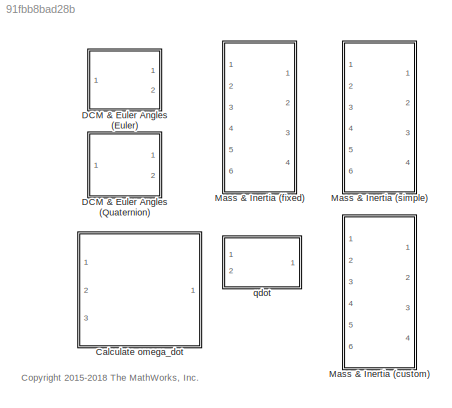
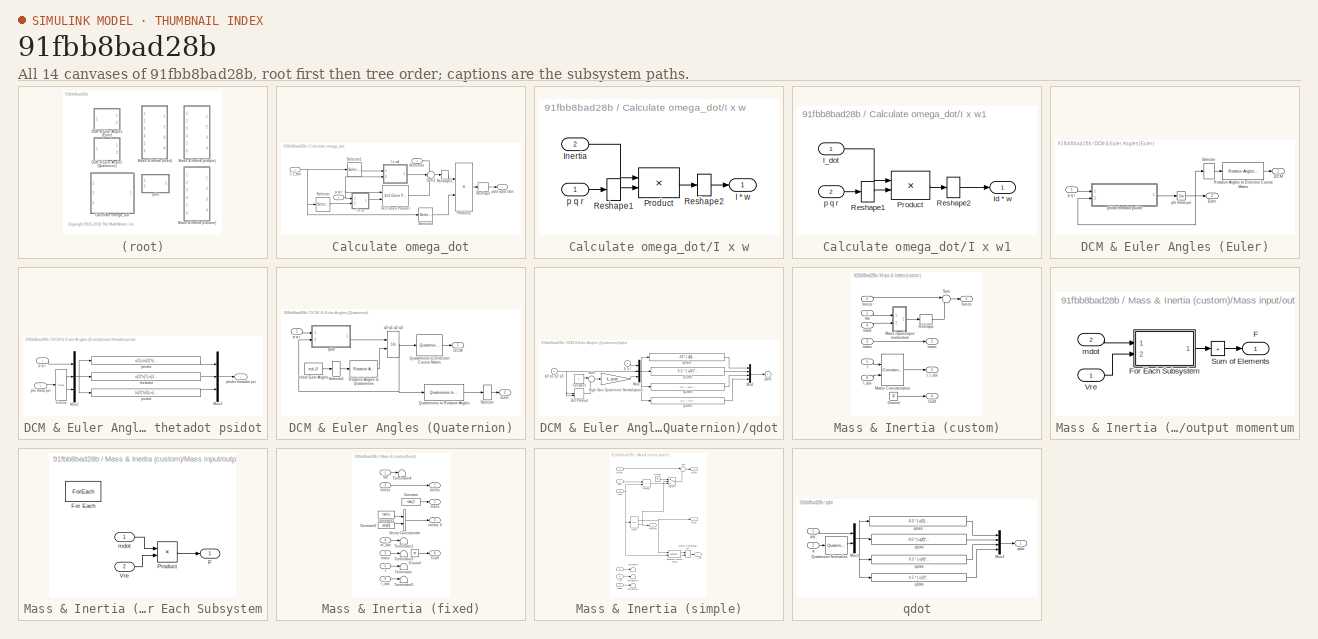
[diagram: thumbnail index - all 14 canvases of the model, root first then tree order]
MODEL slx_91fbb8bad28b
KIND library
CONFIG AbsTol = auto
CONFIG EnableMultiTasking = off
CONFIG FixedStep = auto
CONFIG MaxStep = auto
CONFIG MinStep = auto
CONFIG RelTol = 1e-3
CONFIG SampleTimeConstraint = Unconstrained
CONFIG Solver = ode45
CONFIG SolverName = ode45
CONFIG StartTime = 0.0
CONFIG StopTime = 10.0
BLOCK [SubSystem] Calculate omega_dot
  PermitHierarchicalResolution = ExplicitOnly
  Ports = [3, 1]
  RequestExecContextInheritance = off
BLOCK [Reference] Calculate omega_dot/3x3 Cross Product  REF=sharedutil/3x3 Cross Product
  Ports = [2, 1]
  SourceBlock = sharedutil/3x3 Cross Product
  SourceProductBaseCode = AE,PW,MT,VE,VP
  SourceType = CrossProduct
BLOCK [SubSystem] Calculate omega_dot/I x w
  NameLocation = top
  Ports = [2, 1]
  RequestExecContextInheritance = off
BLOCK [Outport] Calculate omega_dot/I x w/I * w
  VectorParamsAs1DForOutWhenUnconnected = off
BLOCK [Inport] Calculate omega_dot/I x w/Inertia
  Port = 2
BLOCK [Product] Calculate omega_dot/I x w/Product
  InputSameDT = on
  Multiplication = Matrix(*)
  OutDataTypeStr = Inherit: Same as first input
  Ports = [2, 1]
  SaturateOnIntegerOverflow = on
BLOCK [Reshape] Calculate omega_dot/I x w/Reshape1
  OutputDimensionality = Column vector (2-D)
  Ports = [1, 1]
BLOCK [Reshape] Calculate omega_dot/I x w/Reshape2
  Ports = [1, 1]
BLOCK [Inport] Calculate omega_dot/I x w/p q r
BLOCK [SubSystem] Calculate omega_dot/I x w1
  NameLocation = top
  Ports = [2, 1]
  RequestExecContextInheritance = off
BLOCK [Inport] Calculate omega_dot/I x w1/I_dot
BLOCK [Outport] Calculate omega_dot/I x w1/Id * w
  VectorParamsAs1DForOutWhenUnconnected = off
BLOCK [Product] Calculate omega_dot/I x w1/Product
  InputSameDT = on
  Multiplication = Matrix(*)
  OutDataTypeStr = Inherit: Same as first input
  Ports = [2, 1]
  SaturateOnIntegerOverflow = on
BLOCK [Reshape] Calculate omega_dot/I x w1/Reshape1
  OutputDimensionality = Column vector (2-D)
  Ports = [1, 1]
BLOCK [Reshape] Calculate omega_dot/I x w1/Reshape2
  Ports = [1, 1]
BLOCK [Inport] Calculate omega_dot/I x w1/p q r
  Port = 2
BLOCK [Inport] Calculate omega_dot/I, I_dot
  Port = 2
BLOCK [Inport] Calculate omega_dot/Moments
  Port = 3
BLOCK [Product] Calculate omega_dot/Product2
  Inputs = */
  Multiplication = Matrix(*)
  NameLocation = top
  OutDataTypeStr = Inherit: Same as first input
  Ports = [2, 1]
  SaturateOnIntegerOverflow = on
BLOCK [Reshape] Calculate omega_dot/Reshape
  Ports = [1, 1]
BLOCK [Reshape] Calculate omega_dot/Reshape1
  OutputDimensionality = Row vector (2-D)
  Ports = [1, 1]
BLOCK [Selector] Calculate omega_dot/Selector
  IndexOptions = Index vector (dialog),Select all
  Indices = 1:3,-1
  InputPortWidth = 2
  NumberOfDimensions = 2
  OutputSizes = 1
  Ports = [1, 1]
BLOCK [Selector] Calculate omega_dot/Selector1
  IndexOptions = Index vector (dialog),Select all
  Indices = 4:6,-1
  InputPortWidth = 2
  NumberOfDimensions = 2
  OutputSizes = 1
  Ports = [1, 1]
BLOCK [Selector] Calculate omega_dot/Selector2
  IndexOptions = Index vector (dialog),Select all
  Indices = 1:3,-1
  InputPortWidth = 2
  NumberOfDimensions = 2
  OutputSizes = 1
  Ports = [1, 1]
BLOCK [Sum] Calculate omega_dot/Sum2
  Inputs = +--
  Ports = [3, 1]
  SaturateOnIntegerOverflow = on
BLOCK [Inport] Calculate omega_dot/p q r
BLOCK [Outport] Calculate omega_dot/pdot qdot rdot
  VectorParamsAs1DForOutWhenUnconnected = off
BLOCK [SubSystem] DCM & Euler Angles (Euler)
  PermitHierarchicalResolution = ExplicitOnly
  Ports = [1, 2]
  RequestExecContextInheritance = off
BLOCK [Outport] DCM & Euler Angles (Euler)/DCM
  VectorParamsAs1DForOutWhenUnconnected = off
BLOCK [Outport] DCM & Euler Angles (Euler)/Euler
  Port = 2
  VectorParamsAs1DForOutWhenUnconnected = off
BLOCK [Reference] DCM & Euler Angles (Euler)/Rotation Angles to Direction Cosine Matrix  REF=sharedtransform/Rotation Angles to
Direction Cosine Matrix
  AttributesFormatString = Rotation Order: %<rotationOrder>
  Ports = [1, 1]
  SourceBlock = sharedtransform/Rotation Angles to\nDirection Cosine Matrix
  SourceProductBaseCode = AE,PW,MT,VE,VP
  SourceType = Ang2DCM
BLOCK [Selector] DCM & Euler Angles (Euler)/Selector
  IndexOptions = Index vector (dialog)
  Indices = [3 2 1]
  InputPortWidth = 3
  OutputSizes = 1
  Ports = [1, 1]
BLOCK [Inport] DCM & Euler Angles (Euler)/p q r 
BLOCK [Integrator] DCM & Euler Angles (Euler)/phi theta psi
  ContinuousStateAttributes = eul_statename
  InitialCondition = eul_0
  Ports = [1, 1]
  WrapState = on
BLOCK [SubSystem] DCM & Euler Angles (Euler)/phidot thetadot psidot
  Ports = [2, 1]
  RequestExecContextInheritance = off
BLOCK [Mux] DCM & Euler Angles (Euler)/phidot thetadot psidot/Mux1
  DisplayOption = bar
  Inputs = [3 3 3]
  Ports = [3, 1]
BLOCK [Mux] DCM & Euler Angles (Euler)/phidot thetadot psidot/Mux2
  DisplayOption = bar
  Inputs = 3
  Ports = [3, 1]
BLOCK [Inport] DCM & Euler Angles (Euler)/phidot thetadot psidot/p q r
BLOCK [Inport] DCM & Euler Angles (Euler)/phidot thetadot psidot/phi theta psi
  Port = 2
BLOCK [Fcn] DCM & Euler Angles (Euler)/phidot thetadot psidot/phidot
  Expr = u[1]+(u[2]*u[4]+u[3]*u[7])*(u[5]/u[8])
BLOCK [Outport] DCM & Euler Angles (Euler)/phidot thetadot psidot/phidot thetadot psi
  InitialOutput = 0
  VectorParamsAs1DForOutWhenUnconnected = off
BLOCK [Fcn] DCM & Euler Angles (Euler)/phidot thetadot psidot/psidot
  Expr = (u[2]*u[4]+u[3]*u[7])/u[8]
BLOCK [Trigonometry] DCM & Euler Angles (Euler)/phidot thetadot psidot/sincos
  Operator = sincos
  Ports = [1, 2]
BLOCK [Fcn] DCM & Euler Angles (Euler)/phidot thetadot psidot/thetadot
  Expr = u[2]*u[7]-u[3]*u[4]
BLOCK [SubSystem] DCM & Euler Angles (Quaternion)
  PermitHierarchicalResolution = ExplicitOnly
  Ports = [1, 2]
  RequestExecContextInheritance = off
BLOCK [Outport] DCM & Euler Angles (Quaternion)/DCM
  VectorParamsAs1DForOutWhenUnconnected = off
BLOCK [Outport] DCM & Euler Angles (Quaternion)/Euler
  Port = 2
  VectorParamsAs1DForOutWhenUnconnected = off
BLOCK [Constant] DCM & Euler Angles (Quaternion)/Initial Euler Angles
  Value = eul_0
BLOCK [Reference] DCM & Euler Angles (Quaternion)/Quaternions to Direction Cosine Matrix  REF=sharedtransform/Quaternions to 
Direction Cosine Matrix
  Ports = [1, 1]
  SourceBlock = sharedtransform/Quaternions to \nDirection Cosine Matrix
  SourceProductBaseCode = AE,PW,MT,VE,VP
  SourceType = Quaternion2DCM
BLOCK [Reference] DCM & Euler Angles (Quaternion)/Quaternions to Rotation Angles  REF=sharedtransform/Quaternions to Rotation Angles
  AttributesFormatString = Rotation Order: %<rotationOrder>
  Ports = [1, 1]
  SourceBlock = sharedtransform/Quaternions to Rotation Angles
  SourceProductBaseCode = AE,PW,MT,VE,VP
  SourceType = Quat2Ang
BLOCK [Reference] DCM & Euler Angles (Quaternion)/Rotation Angles to Quaternions  REF=sharedtransform/Rotation Angles to Quaternions
  AttributesFormatString = Rotation Order: %<rotationOrder>
  Ports = [1, 1]
  SourceBlock = sharedtransform/Rotation Angles to Quaternions
  SourceProductBaseCode = AE,PW,MT,VE,VP
  SourceType = Ang2Quat
BLOCK [Selector] DCM & Euler Angles (Quaternion)/Selector
  IndexOptions = Index vector (dialog)
  Indices = [3 2 1]
  InputPortWidth = 3
  NameLocation = top
  OutputSizes = 1
  Ports = [1, 1]
BLOCK [Selector] DCM & Euler Angles (Quaternion)/Selector1
  IndexOptions = Index vector (dialog)
  Indices = [3 2 1]
  InputPortWidth = 3
  NameLocation = top
  OutputSizes = 1
  Ports = [1, 1]
BLOCK [Inport] DCM & Euler Angles (Quaternion)/p q r
BLOCK [Integrator] DCM & Euler Angles (Quaternion)/q0 q1 q2 q3
  ContinuousStateAttributes = quat_statename
  InitialCondition = [e0_0 e1_0 e2_0 e3_0]
  InitialConditionSource = external
  Ports = [2, 1]
BLOCK [SubSystem] DCM & Euler Angles (Quaternion)/qdot
  Ports = [2, 1]
  RequestExecContextInheritance = off
BLOCK [Constant] DCM & Euler Angles (Quaternion)/qdot/Constant
BLOCK [DotProduct] DCM & Euler Angles (Quaternion)/qdot/Dot Product
  InputSameDT = off
  OutDataTypeStr = Inherit: Inherit via internal rule
BLOCK [Gain] DCM & Euler Angles (Quaternion)/qdot/High Gain Quaternion Normalization
  Gain = k_quat
  OutDataTypeStr = Inherit: Same as input
  ParamDataTypeStr = Inherit: Same as input
  SaturateOnIntegerOverflow = on
BLOCK [Mux] DCM & Euler Angles (Quaternion)/qdot/Mux1
  DisplayOption = bar
  Inputs = [3 4 1]
  Ports = [3, 1]
BLOCK [Mux] DCM & Euler Angles (Quaternion)/qdot/Mux2
  DisplayOption = bar
  Ports = [4, 1]
BLOCK [Sum] DCM & Euler Angles (Quaternion)/qdot/Sum
  InputSameDT = on
  Inputs = |+-
  OutDataTypeStr = Inherit: Same as first input
  Ports = [2, 1]
  SaturateOnIntegerOverflow = on
BLOCK [Inport] DCM & Euler Angles (Quaternion)/qdot/p q r
  NameLocation = top
BLOCK [Inport] DCM & Euler Angles (Quaternion)/qdot/q0 q1 q2 q3
  Port = 2
BLOCK [Fcn] DCM & Euler Angles (Quaternion)/qdot/q0dot
  Expr = -0.5 * ( u[5]*u[1]+u[6]*u[2]+u[7]*u[3] ) + u[8]*u[4]
BLOCK [Fcn] DCM & Euler Angles (Quaternion)/qdot/q1dot
  Expr = 0.5 * ( u[4]*u[1]+u[6]*u[3]-u[7]*u[2] ) + u[8]*u[5]
BLOCK [Fcn] DCM & Euler Angles (Quaternion)/qdot/q2dot
  Expr = 0.5 * ( u[4]*u[2]+u[7]*u[1]-u[5]*u[3] ) + u[8]*u[6]
BLOCK [Fcn] DCM & Euler Angles (Quaternion)/qdot/q3dot
  Expr = 0.5 * ( u[4]*u[3]+u[5]*u[2]-u[6]*u[1] ) + u[8]*u[7]
BLOCK [Outport] DCM & Euler Angles (Quaternion)/qdot/qdot
  InitialOutput = 0
  VectorParamsAs1DForOutWhenUnconnected = off
BLOCK [SubSystem] Mass & Inertia (custom)
  PermitHierarchicalResolution = ExplicitOnly
  Ports = [6, 4]
  RequestExecContextInheritance = off
BLOCK [Ground] Mass & Inertia (custom)/Ground
BLOCK [Inport] Mass & Inertia (custom)/I
  Port = 5
BLOCK [Outport] Mass & Inertia (custom)/I, I_dot 
  Port = 3
  VectorParamsAs1DForOutWhenUnconnected = off
BLOCK [Inport] Mass & Inertia (custom)/I_dot
  Port = 6
BLOCK [SubSystem] Mass & Inertia (custom)/Mass input//output momentum
  Ports = [2, 1]
  RequestExecContextInheritance = off
BLOCK [Outport] Mass & Inertia (custom)/Mass input//output momentum/F
  VectorParamsAs1DForOutWhenUnconnected = off
BLOCK [SubSystem] Mass & Inertia (custom)/Mass input//output momentum/For Each Subsystem
  Ports = [2, 1]
  RequestExecContextInheritance = off
  TreatAsAtomicUnit = on
BLOCK [Outport] Mass & Inertia (custom)/Mass input//output momentum/For Each Subsystem/F
  ConcatenationDimension = 2
  VectorParamsAs1DForOutWhenUnconnected = off
BLOCK [ForEach] Mass & Inertia (custom)/Mass input//output momentum/For Each Subsystem/For Each
  DisableCoverage = on
  Ports = []
BLOCK [Product] Mass & Inertia (custom)/Mass input//output momentum/For Each Subsystem/Product
  Ports = [2, 1]
BLOCK [Inport] Mass & Inertia (custom)/Mass input//output momentum/For Each Subsystem/Vre
  Partition = on
  PartitionDimension = 1
  PartitionOffset = 0
  PartitionWidth = 3
  Port = 2
BLOCK [Inport] Mass & Inertia (custom)/Mass input//output momentum/For Each Subsystem/mdot
  Partition = on
  PartitionDimension = 1
  PartitionOffset = 0
  PartitionWidth = 1
BLOCK [Sum] Mass & Inertia (custom)/Mass input//output momentum/Sum of Elements
  CollapseDim = 2
  CollapseMode = Specified dimension
  IconShape = rectangular
  Inputs = +
  Ports = [1, 1]
BLOCK [Inport] Mass & Inertia (custom)/Mass input//output momentum/Vre
BLOCK [Inport] Mass & Inertia (custom)/Mass input//output momentum/mdot
  Port = 2
BLOCK [Concatenate] Mass & Inertia (custom)/Matrix Concatenation
  Mode = Multidimensional array
  Ports = [2, 1]
BLOCK [Outport] Mass & Inertia (custom)/Out9
  Port = 4
  VectorParamsAs1DForOutWhenUnconnected = off
BLOCK [Reshape] Mass & Inertia (custom)/Reshape
  Ports = [1, 1]
BLOCK [Sum] Mass & Inertia (custom)/Sum
  Inputs = |++
  Ports = [2, 1]
  SaturateOnIntegerOverflow = on
BLOCK [Inport] Mass & Inertia (custom)/Vre
BLOCK [Inport] Mass & Inertia (custom)/forces
  Port = 2
BLOCK [Outport] Mass & Inertia (custom)/forces 
  PortDimensions = 3
  VectorParamsAs1DForOutWhenUnconnected = off
BLOCK [Outport] Mass & Inertia (custom)/mass
  Port = 2
  VectorParamsAs1DForOutWhenUnconnected = off
BLOCK [Inport] Mass & Inertia (custom)/mass 
  Port = 3
BLOCK [Inport] Mass & Inertia (custom)/mdot
  Port = 4
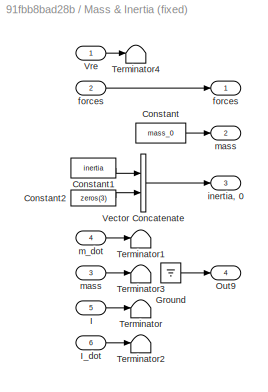
BLOCK [SubSystem] Mass & Inertia (fixed)
  PermitHierarchicalResolution = ExplicitOnly
  Ports = [6, 4]
  RequestExecContextInheritance = off
BLOCK [Constant] Mass & Inertia (fixed)/Constant
  OutDataTypeStr = Inherit: Inherit via back propagation
  Value = mass_0
BLOCK [Constant] Mass & Inertia (fixed)/Constant1
  OutDataTypeStr = Inherit: Inherit via back propagation
  Value = inertia
BLOCK [Constant] Mass & Inertia (fixed)/Constant2
  Value = zeros(3)
BLOCK [Ground] Mass & Inertia (fixed)/Ground
BLOCK [Inport] Mass & Inertia (fixed)/I
  OutDataTypeStr = double
  Port = 5
BLOCK [Inport] Mass & Inertia (fixed)/I_dot
  OutDataTypeStr = double
  Port = 6
BLOCK [Outport] Mass & Inertia (fixed)/Out9
  Port = 4
  VectorParamsAs1DForOutWhenUnconnected = off
BLOCK [Terminator] Mass & Inertia (fixed)/Terminator
BLOCK [Terminator] Mass & Inertia (fixed)/Terminator1
BLOCK [Terminator] Mass & Inertia (fixed)/Terminator2
BLOCK [Terminator] Mass & Inertia (fixed)/Terminator3
BLOCK [Terminator] Mass & Inertia (fixed)/Terminator4
BLOCK [Concatenate] Mass & Inertia (fixed)/Vector Concatenate
  Mode = Multidimensional array
  Ports = [2, 1]
BLOCK [Inport] Mass & Inertia (fixed)/Vre
BLOCK [Inport] Mass & Inertia (fixed)/forces
  Port = 2
BLOCK [Outport] Mass & Inertia (fixed)/forces 
  VectorParamsAs1DForOutWhenUnconnected = off
BLOCK [Outport] Mass & Inertia (fixed)/inertia, 0
  Port = 3
  VectorParamsAs1DForOutWhenUnconnected = off
BLOCK [Inport] Mass & Inertia (fixed)/m_dot
  OutDataTypeStr = double
  Port = 4
BLOCK [Outport] Mass & Inertia (fixed)/mass
  Port = 2
  VectorParamsAs1DForOutWhenUnconnected = off
BLOCK [Inport] Mass & Inertia (fixed)/mass 
  Port = 3
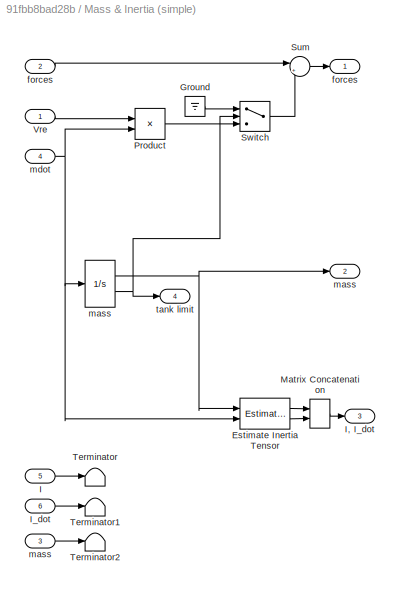
BLOCK [SubSystem] Mass & Inertia (simple)
  PermitHierarchicalResolution = ExplicitOnly
  Ports = [6, 4]
  RequestExecContextInheritance = off
BLOCK [Reference] Mass & Inertia (simple)/Estimate Inertia Tensor  REF=shareddyn/Estimate
Inertia Tensor
  Ports = [2, 2]
  SourceBlock = shareddyn/Estimate\nInertia Tensor
  SourceProductBaseCode = AE,PW,MT,VE,VP
  SourceType = Estimate Inertia Tensor
BLOCK [Ground] Mass & Inertia (simple)/Ground
BLOCK [Inport] Mass & Inertia (simple)/I
  OutDataTypeStr = double
  Port = 5
BLOCK [Outport] Mass & Inertia (simple)/I, I_dot
  Port = 3
  VectorParamsAs1DForOutWhenUnconnected = off
BLOCK [Inport] Mass & Inertia (simple)/I_dot
  OutDataTypeStr = double
  Port = 6
BLOCK [Concatenate] Mass & Inertia (simple)/Matrix Concatenation
  Mode = Multidimensional array
  Ports = [2, 1]
BLOCK [Product] Mass & Inertia (simple)/Product
  Ports = [2, 1]
BLOCK [Sum] Mass & Inertia (simple)/Sum
  Inputs = |++
  Ports = [2, 1]
  SaturateOnIntegerOverflow = on
BLOCK [Switch] Mass & Inertia (simple)/Switch
  Criteria = u2 ~= 0
  InputSameDT = off
  SaturateOnIntegerOverflow = off
BLOCK [Terminator] Mass & Inertia (simple)/Terminator
BLOCK [Terminator] Mass & Inertia (simple)/Terminator1
BLOCK [Terminator] Mass & Inertia (simple)/Terminator2
BLOCK [Inport] Mass & Inertia (simple)/Vre
BLOCK [Inport] Mass & Inertia (simple)/forces
  Port = 2
BLOCK [Outport] Mass & Inertia (simple)/forces 
  PortDimensions = 3
  VectorParamsAs1DForOutWhenUnconnected = off
BLOCK [Outport] Mass & Inertia (simple)/mass
  Port = 2
  VectorParamsAs1DForOutWhenUnconnected = off
BLOCK [Inport] Mass & Inertia (simple)/mass 
  Port = 3
BLOCK [Integrator] Mass & Inertia (simple)/mass  
  ContinuousStateAttributes = mass_statename
  InitialCondition = mass_0
  LimitOutput = on
  LowerSaturationLimit = mass_e
  Ports = [1, 2]
  ShowSaturationPort = on
  UpperSaturationLimit = mass_f
BLOCK [Inport] Mass & Inertia (simple)/mdot
  Port = 4
BLOCK [Outport] Mass & Inertia (simple)/tank limit
  Port = 4
  VectorParamsAs1DForOutWhenUnconnected = off
BLOCK [SubSystem] qdot
  PermitHierarchicalResolution = ExplicitOnly
  Ports = [2, 1]
  RequestExecContextInheritance = off
BLOCK [Mux] qdot/Mux1
  DisplayOption = bar
  Inputs = [3 4]
  Ports = [2, 1]
BLOCK [Mux] qdot/Mux2
  DisplayOption = bar
  Ports = [4, 1]
BLOCK [Reference] qdot/Quaternion Normalize  REF=sharedutil/Quaternion
Normalize
  Ports = [1, 1]
  SourceBlock = sharedutil/Quaternion\nNormalize
  SourceProductBaseCode = AE,PW,MT,VE,VP
  SourceType = Quaternion Normalize
BLOCK [Inport] qdot/pqr
  NameLocation = top
BLOCK [Inport] qdot/q
  Port = 2
BLOCK [Fcn] qdot/q0dot
  Expr = -0.5 * ( u[5]*u[1]+u[6]*u[2]+u[7]*u[3] )
BLOCK [Fcn] qdot/q1dot
  Expr = 0.5 * ( u[4]*u[1]+u[6]*u[3]-u[7]*u[2] )
BLOCK [Fcn] qdot/q2dot
  Expr = 0.5 * ( u[4]*u[2]+u[7]*u[1]-u[5]*u[3] )
BLOCK [Fcn] qdot/q3dot
  Expr = 0.5 * ( u[4]*u[3]+u[5]*u[2]-u[6]*u[1] )
BLOCK [Outport] qdot/qdot
  InitialOutput = 0
  VectorParamsAs1DForOutWhenUnconnected = off
ANNOTATION (root): <copyright redacted>
LINE Calculate omega_dot/3x3 Cross Product:1 -> Calculate omega_dot/Sum2:3
LINE Calculate omega_dot/I x w/Inertia:1 -> Calculate omega_dot/I x w/Product:1
LINE Calculate omega_dot/I x w/Product:1 -> Calculate omega_dot/I x w/Reshape2:1
LINE Calculate omega_dot/I x w/Reshape1:1 -> Calculate omega_dot/I x w/Product:2
LINE Calculate omega_dot/I x w/Reshape2:1 -> Calculate omega_dot/I x w/I * w:1
LINE Calculate omega_dot/I x w/p q r:1 -> Calculate omega_dot/I x w/Reshape1:1
LINE Calculate omega_dot/I x w1/I_dot:1 -> Calculate omega_dot/I x w1/Product:1
LINE Calculate omega_dot/I x w1/Product:1 -> Calculate omega_dot/I x w1/Reshape2:1
LINE Calculate omega_dot/I x w1/Reshape1:1 -> Calculate omega_dot/I x w1/Product:2
LINE Calculate omega_dot/I x w1/Reshape2:1 -> Calculate omega_dot/I x w1/Id * w:1
LINE Calculate omega_dot/I x w1/p q r:1 -> Calculate omega_dot/I x w1/Reshape1:1
LINE Calculate omega_dot/I x w1:1 -> Calculate omega_dot/Sum2:2
LINE Calculate omega_dot/I x w:1 -> Calculate omega_dot/3x3 Cross Product:2
NET Calculate omega_dot/I, I_dot:1 -> Calculate omega_dot/Selector1:1, Calculate omega_dot/Selector2:1, Calculate omega_dot/Selector:1
LINE Calculate omega_dot/Moments:1 -> Calculate omega_dot/Sum2:1
LINE Calculate omega_dot/Product2:1 -> Calculate omega_dot/Reshape:1
LINE Calculate omega_dot/Reshape1:1 -> Calculate omega_dot/Product2:1
LINE Calculate omega_dot/Reshape:1 -> Calculate omega_dot/pdot qdot rdot:1
LINE Calculate omega_dot/Selector1:1 -> Calculate omega_dot/I x w1:1
LINE Calculate omega_dot/Selector2:1 -> Calculate omega_dot/Product2:2
LINE Calculate omega_dot/Selector:1 -> Calculate omega_dot/I x w:2
LINE Calculate omega_dot/Sum2:1 -> Calculate omega_dot/Reshape1:1
NET Calculate omega_dot/p q r:1 -> Calculate omega_dot/3x3 Cross Product:1, Calculate omega_dot/I x w1:2, Calculate omega_dot/I x w:1
LINE DCM & Euler Angles (Euler)/Rotation Angles to Direction Cosine Matrix:1 -> DCM & Euler Angles (Euler)/DCM:1
LINE DCM & Euler Angles (Euler)/Selector:1 -> DCM & Euler Angles (Euler)/Rotation Angles to Direction Cosine Matrix:1
LINE DCM & Euler Angles (Euler)/p q r :1 -> DCM & Euler Angles (Euler)/phidot thetadot psidot:1
NET DCM & Euler Angles (Euler)/phi theta psi:1 -> DCM & Euler Angles (Euler)/Euler:1, DCM & Euler Angles (Euler)/Selector:1, DCM & Euler Angles (Euler)/phidot thetadot psidot:2
NET DCM & Euler Angles (Euler)/phidot thetadot psidot/Mux1:1 -> DCM & Euler Angles (Euler)/phidot thetadot psidot/phidot:1, DCM & Euler Angles (Euler)/phidot thetadot psidot/psidot:1, DCM & Euler Angles (Euler)/phidot thetadot psidot/thetadot:1
LINE DCM & Euler Angles (Euler)/phidot thetadot psidot/Mux2:1 -> DCM & Euler Angles (Euler)/phidot thetadot psidot/phidot thetadot psi:1
LINE DCM & Euler Angles (Euler)/phidot thetadot psidot/p q r:1 -> DCM & Euler Angles (Euler)/phidot thetadot psidot/Mux1:1
LINE DCM & Euler Angles (Euler)/phidot thetadot psidot/phi theta psi:1 -> DCM & Euler Angles (Euler)/phidot thetadot psidot/sincos:1
LINE DCM & Euler Angles (Euler)/phidot thetadot psidot/phidot:1 -> DCM & Euler Angles (Euler)/phidot thetadot psidot/Mux2:1
LINE DCM & Euler Angles (Euler)/phidot thetadot psidot/psidot:1 -> DCM & Euler Angles (Euler)/phidot thetadot psidot/Mux2:3
LINE DCM & Euler Angles (Euler)/phidot thetadot psidot/sincos:1 -> DCM & Euler Angles (Euler)/phidot thetadot psidot/Mux1:2
LINE DCM & Euler Angles (Euler)/phidot thetadot psidot/sincos:2 -> DCM & Euler Angles (Euler)/phidot thetadot psidot/Mux1:3
LINE DCM & Euler Angles (Euler)/phidot thetadot psidot/thetadot:1 -> DCM & Euler Angles (Euler)/phidot thetadot psidot/Mux2:2
LINE DCM & Euler Angles (Euler)/phidot thetadot psidot:1 -> DCM & Euler Angles (Euler)/phi theta psi:1
LINE DCM & Euler Angles (Quaternion)/Initial Euler Angles:1 -> DCM & Euler Angles (Quaternion)/Selector1:1
LINE DCM & Euler Angles (Quaternion)/Quaternions to Direction Cosine Matrix:1 -> DCM & Euler Angles (Quaternion)/DCM:1
LINE DCM & Euler Angles (Quaternion)/Quaternions to Rotation Angles:1 -> DCM & Euler Angles (Quaternion)/Selector:1
LINE DCM & Euler Angles (Quaternion)/Rotation Angles to Quaternions:1 -> DCM & Euler Angles (Quaternion)/q0 q1 q2 q3:2
LINE DCM & Euler Angles (Quaternion)/Selector1:1 -> DCM & Euler Angles (Quaternion)/Rotation Angles to Quaternions:1
LINE DCM & Euler Angles (Quaternion)/Selector:1 -> DCM & Euler Angles (Quaternion)/Euler:1
LINE DCM & Euler Angles (Quaternion)/p q r:1 -> DCM & Euler Angles (Quaternion)/qdot:1
NET DCM & Euler Angles (Quaternion)/q0 q1 q2 q3:1 -> DCM & Euler Angles (Quaternion)/Quaternions to Direction Cosine Matrix:1, DCM & Euler Angles (Quaternion)/Quaternions to Rotation Angles:1, DCM & Euler Angles (Quaternion)/qdot:2
LINE DCM & Euler Angles (Quaternion)/qdot/Constant:1 -> DCM & Euler Angles (Quaternion)/qdot/Sum:1
LINE DCM & Euler Angles (Quaternion)/qdot/Dot Product:1 -> DCM & Euler Angles (Quaternion)/qdot/Sum:2
LINE DCM & Euler Angles (Quaternion)/qdot/High Gain Quaternion Normalization:1 -> DCM & Euler Angles (Quaternion)/qdot/Mux1:3
NET DCM & Euler Angles (Quaternion)/qdot/Mux1:1 -> DCM & Euler Angles (Quaternion)/qdot/q0dot:1, DCM & Euler Angles (Quaternion)/qdot/q1dot:1, DCM & Euler Angles (Quaternion)/qdot/q2dot:1, DCM & Euler Angles (Quaternion)/qdot/q3dot:1
LINE DCM & Euler Angles (Quaternion)/qdot/Mux2:1 -> DCM & Euler Angles (Quaternion)/qdot/qdot:1
LINE DCM & Euler Angles (Quaternion)/qdot/Sum:1 -> DCM & Euler Angles (Quaternion)/qdot/High Gain Quaternion Normalization:1
LINE DCM & Euler Angles (Quaternion)/qdot/p q r:1 -> DCM & Euler Angles (Quaternion)/qdot/Mux1:1
NET DCM & Euler Angles (Quaternion)/qdot/q0 q1 q2 q3:1 -> DCM & Euler Angles (Quaternion)/qdot/Dot Product:1, DCM & Euler Angles (Quaternion)/qdot/Dot Product:2, DCM & Euler Angles (Quaternion)/qdot/Mux1:2
LINE DCM & Euler Angles (Quaternion)/qdot/q0dot:1 -> DCM & Euler Angles (Quaternion)/qdot/Mux2:1
LINE DCM & Euler Angles (Quaternion)/qdot/q1dot:1 -> DCM & Euler Angles (Quaternion)/qdot/Mux2:2
LINE DCM & Euler Angles (Quaternion)/qdot/q2dot:1 -> DCM & Euler Angles (Quaternion)/qdot/Mux2:3
LINE DCM & Euler Angles (Quaternion)/qdot/q3dot:1 -> DCM & Euler Angles (Quaternion)/qdot/Mux2:4
LINE DCM & Euler Angles (Quaternion)/qdot:1 -> DCM & Euler Angles (Quaternion)/q0 q1 q2 q3:1
LINE Mass & Inertia (custom)/Ground:1 -> Mass & Inertia (custom)/Out9:1
LINE Mass & Inertia (custom)/I:1 -> Mass & Inertia (custom)/Matrix Concatenation:1
LINE Mass & Inertia (custom)/I_dot:1 -> Mass & Inertia (custom)/Matrix Concatenation:2
LINE Mass & Inertia (custom)/Mass input//output momentum/For Each Subsystem/Product:1 -> Mass & Inertia (custom)/Mass input//output momentum/For Each Subsystem/F:1
LINE Mass & Inertia (custom)/Mass input//output momentum/For Each Subsystem/Vre:1 -> Mass & Inertia (custom)/Mass input//output momentum/For Each Subsystem/Product:2
LINE Mass & Inertia (custom)/Mass input//output momentum/For Each Subsystem/mdot:1 -> Mass & Inertia (custom)/Mass input//output momentum/For Each Subsystem/Product:1
LINE Mass & Inertia (custom)/Mass input//output momentum/For Each Subsystem:1 -> Mass & Inertia (custom)/Mass input//output momentum/Sum of Elements:1
LINE Mass & Inertia (custom)/Mass input//output momentum/Sum of Elements:1 -> Mass & Inertia (custom)/Mass input//output momentum/F:1
LINE Mass & Inertia (custom)/Mass input//output momentum/Vre:1 -> Mass & Inertia (custom)/Mass input//output momentum/For Each Subsystem:2
LINE Mass & Inertia (custom)/Mass input//output momentum/mdot:1 -> Mass & Inertia (custom)/Mass input//output momentum/For Each Subsystem:1
LINE Mass & Inertia (custom)/Mass input//output momentum:1 -> Mass & Inertia (custom)/Reshape:1
LINE Mass & Inertia (custom)/Matrix Concatenation:1 -> Mass & Inertia (custom)/I, I_dot :1
LINE Mass & Inertia (custom)/Reshape:1 -> Mass & Inertia (custom)/Sum:2
LINE Mass & Inertia (custom)/Sum:1 -> Mass & Inertia (custom)/forces :1
LINE Mass & Inertia (custom)/Vre:1 -> Mass & Inertia (custom)/Mass input//output momentum:1
LINE Mass & Inertia (custom)/forces:1 -> Mass & Inertia (custom)/Sum:1
LINE Mass & Inertia (custom)/mass :1 -> Mass & Inertia (custom)/mass:1
LINE Mass & Inertia (custom)/mdot:1 -> Mass & Inertia (custom)/Mass input//output momentum:2
LINE Mass & Inertia (fixed)/Constant1:1 -> Mass & Inertia (fixed)/Vector Concatenate:1
LINE Mass & Inertia (fixed)/Constant2:1 -> Mass & Inertia (fixed)/Vector Concatenate:2
LINE Mass & Inertia (fixed)/Constant:1 -> Mass & Inertia (fixed)/mass:1
LINE Mass & Inertia (fixed)/Ground:1 -> Mass & Inertia (fixed)/Out9:1
LINE Mass & Inertia (fixed)/I:1 -> Mass & Inertia (fixed)/Terminator:1
LINE Mass & Inertia (fixed)/I_dot:1 -> Mass & Inertia (fixed)/Terminator2:1
LINE Mass & Inertia (fixed)/Vector Concatenate:1 -> Mass & Inertia (fixed)/inertia, 0:1
LINE Mass & Inertia (fixed)/Vre:1 -> Mass & Inertia (fixed)/Terminator4:1
LINE Mass & Inertia (fixed)/forces:1 -> Mass & Inertia (fixed)/forces :1
LINE Mass & Inertia (fixed)/m_dot:1 -> Mass & Inertia (fixed)/Terminator1:1
LINE Mass & Inertia (fixed)/mass :1 -> Mass & Inertia (fixed)/Terminator3:1
NET qdot/Mux1:1 -> qdot/q0dot:1, qdot/q1dot:1, qdot/q2dot:1, qdot/q3dot:1
LINE qdot/Mux2:1 -> qdot/qdot:1
LINE qdot/Quaternion Normalize:1 -> qdot/Mux1:2
LINE qdot/pqr:1 -> qdot/Mux1:1
LINE qdot/q0dot:1 -> qdot/Mux2:1
LINE qdot/q1dot:1 -> qdot/Mux2:2
LINE qdot/q2dot:1 -> qdot/Mux2:3
LINE qdot/q3dot:1 -> qdot/Mux2:4
LINE qdot/q:1 -> qdot/Quaternion Normalize:1
note: NET lines group one-source signal fan-out (src -> all destinations, sorted); 1:1 wires keep LINE
